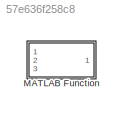
MODEL slx_57e636f258c8
KIND model
CONFIG AbsTol = auto
CONFIG EnableMultiTasking = off
CONFIG FixedStep = auto
CONFIG MaxStep = auto
CONFIG MinStep = auto
CONFIG RelTol = 1e-3
CONFIG SampleTimeConstraint = Unconstrained
CONFIG Solver = VariableStepAuto
CONFIG SolverName = VariableStepAuto
CONFIG StartTime = 0.0
CONFIG StopTime = 10.0
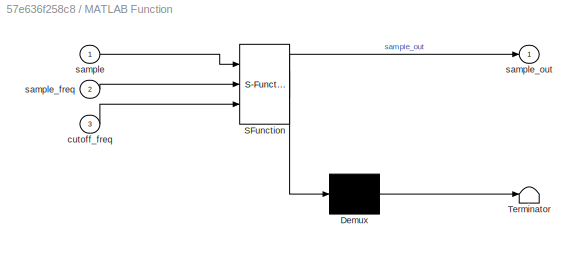
BLOCK [SubSystem] MATLAB Function
  ErrorFcn = Stateflow.Translate.translate
  PermitHierarchicalResolution = ExplicitOnly
  Ports = [3, 1]
  RequestExecContextInheritance = off
  SFBlockType = MATLAB Function
  TreatAsAtomicUnit = on
BLOCK [Demux] MATLAB Function/ Demux 
  Outputs = 1
  Ports = [1, 1]
BLOCK [S-Function] MATLAB Function/ SFunction 
  EnableBusSupport = on
  FunctionName = sf_sfun
  PortCounts = [3 2]
  Ports = [3, 2]
  SFcnIsStateOwnerBlock = off
  SFunctionDeploymentMode = off
  Tag = Stateflow S-Function 2
BLOCK [Terminator] MATLAB Function/ Terminator 
BLOCK [Inport] MATLAB Function/cutoff_freq
  IconDisplay = Port number
  Port = 3
BLOCK [Inport] MATLAB Function/sample
  IconDisplay = Port number
BLOCK [Inport] MATLAB Function/sample_freq
  IconDisplay = Port number
  Port = 2
BLOCK [Outport] MATLAB Function/sample_out
  IconDisplay = Port number
CHART MATLAB Function states=1 transitions=1
  STATE_LABEL 'eML_blk_kernel()'
  STATE_LABEL 'SCRIPT:\nfunction sample_out = LowPassFilter2p(sample,sample_freq,  cutoff_freq)\n\npersistent params\n    if isempty(params)\n    params=compute_params( sample_freq,  cutoff_freq);\n    end\nsample_out= DigitalBiquadFilter_apply(sample, params); \n'
